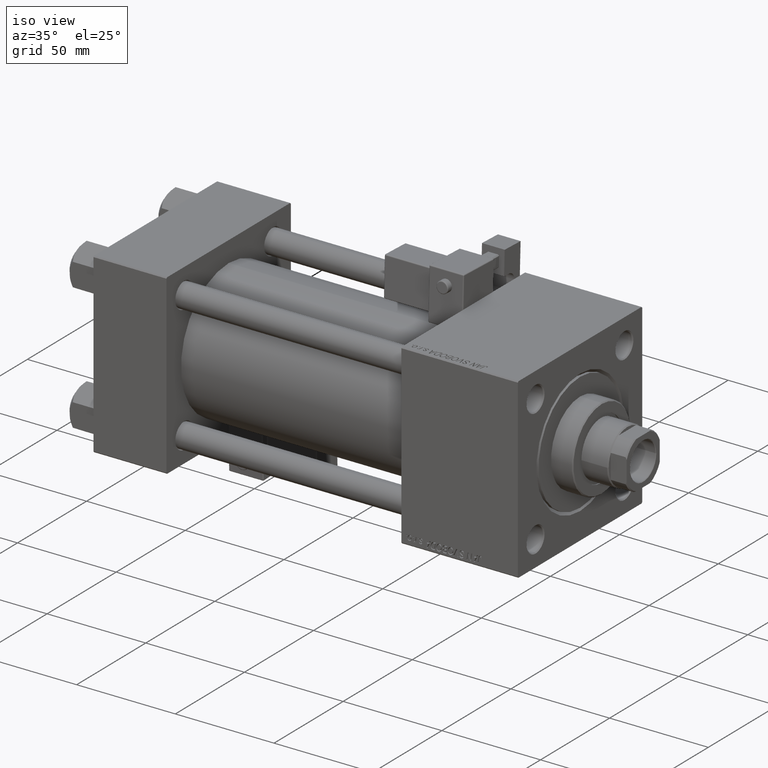
[diagram: clean part render]
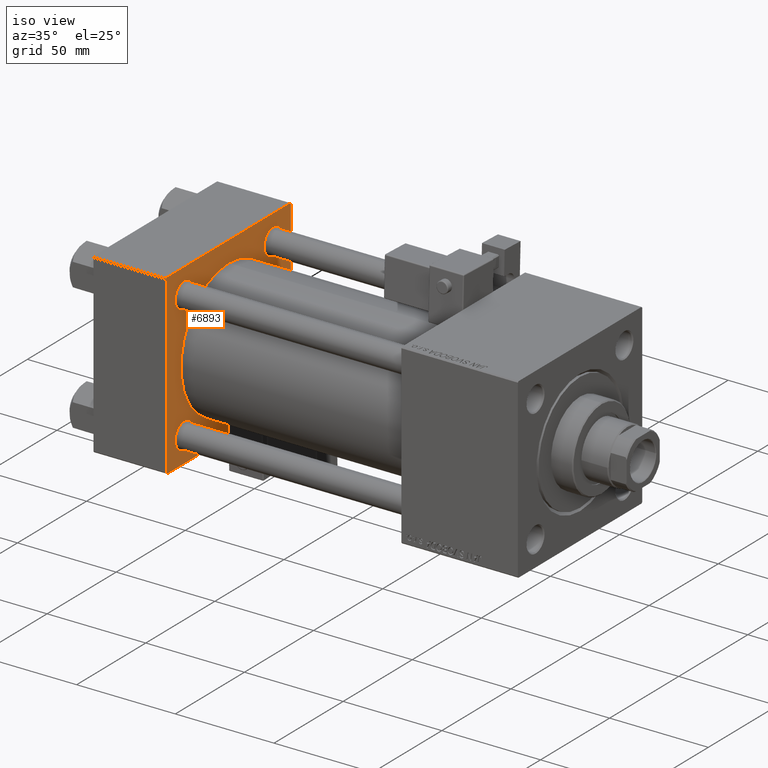
[diagram: same view with one face highlighted and labeled with its STEP entity id]
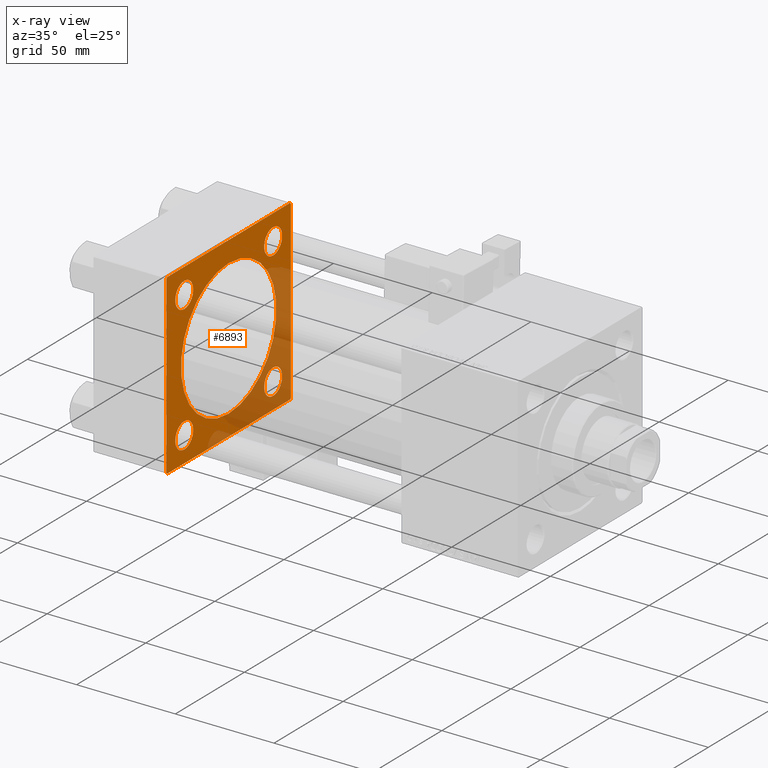
[diagram: x-ray of the same camera — body ghosted, the highlighted face saturated]
A machine part, iso view. The second image highlights one B-rep face of the part: STEP entity #6893.
The next image is the same camera in x-ray: the body ghosted, the highlighted face saturated — about 32% of this face is hidden behind the body in this view.
In plain terms, the highlighted planar face has unit normal (-1, 0, 0).
Its self-contained STEP definition (entity closure, byte-faithful):
#237 = EDGE_CURVE ( 'NONE', #8070, #34668, #23882, .T. ) ;
#497 = FACE_BOUND ( 'NONE', #11381, .T. ) ;
#766 = FACE_OUTER_BOUND ( 'NONE', #14290, .T. ) ;
#981 = DIRECTION ( 'NONE',  ( 0.000000000000000000, -0.7071067811865474617, 0.7071067811865474617 ) ) ;
#1037 = EDGE_CURVE ( 'NONE', #13091, #17216, #9475, .T. ) ;
#1996 = AXIS2_PLACEMENT_3D ( 'NONE', #41012, #9218, #32814 ) ;
#2231 = CARTESIAN_POINT ( 'NONE',  ( 37.00000000000000000, 32.14999999999999147, -32.15000000000000568 ) ) ;
#2335 = CIRCLE ( 'NONE', #31957, 6.500000000000005329 ) ;
#2912 = DIRECTION ( 'NONE',  ( -1.000000000000000000, 0.000000000000000000, -0.000000000000000000 ) ) ;
#4224 = FACE_BOUND ( 'NONE', #48486, .T. ) ;
#4652 = AXIS2_PLACEMENT_3D ( 'NONE', #23295, #39443, #35475 ) ;
#6406 = DIRECTION ( 'NONE',  ( 0.000000000000000000, -1.000000000000000000, -1.541976423090495387E-16 ) ) ;
#6481 = LINE ( 'NONE', #22668, #13468 ) ;
#6758 = CARTESIAN_POINT ( 'NONE',  ( 37.00000000000000000, -45.00000000000000711, 44.49999999999997158 ) ) ;
#6893 = ADVANCED_FACE ( 'NONE', ( #497, #12449, #36553, #44517, #4224, #766 ), #16692, .F. ) ;
#7148 = DIRECTION ( 'NONE',  ( 0.000000000000000000, 0.000000000000000000, 1.000000000000000000 ) ) ;
#7173 = CARTESIAN_POINT ( 'NONE',  ( 37.00000000000000000, -44.49999999999995737, -45.00000000000000000 ) ) ;
#7827 = VECTOR ( 'NONE', #981, 1000.000000000000114 ) ;
#8070 = VERTEX_POINT ( 'NONE', #36235 ) ;
#8630 = CIRCLE ( 'NONE', #17119, 6.499999999999977796 ) ;
#8792 = VERTEX_POINT ( 'NONE', #33065 ) ;
#8805 = ORIENTED_EDGE ( 'NONE', *, *, #18613, .T. ) ;
#9218 = DIRECTION ( 'NONE',  ( 1.000000000000000000, -0.000000000000000000, 0.000000000000000000 ) ) ;
#9396 = LINE ( 'NONE', #30067, #18848 ) ;
#9475 = LINE ( 'NONE', #44275, #7827 ) ;
#9603 = LINE ( 'NONE', #50426, #34759 ) ;
#9667 = DIRECTION ( 'NONE',  ( 0.000000000000000000, 0.000000000000000000, 1.000000000000000000 ) ) ;
#9936 = DIRECTION ( 'NONE',  ( -1.000000000000000000, 0.000000000000000000, -0.000000000000000000 ) ) ;
#10436 = EDGE_LOOP ( 'NONE', ( #8805, #27571 ) ) ;
#11330 = EDGE_CURVE ( 'NONE', #22027, #13874, #11469, .T. ) ;
#11381 = EDGE_LOOP ( 'NONE', ( #17068, #41189 ) ) ;
#11453 = CARTESIAN_POINT ( 'NONE',  ( 37.00000000000000000, 32.14999999999999147, -38.64999999999998437 ) ) ;
#11469 = CIRCLE ( 'NONE', #19117, 6.499999999999977796 ) ;
#11522 = ORIENTED_EDGE ( 'NONE', *, *, #48686, .T. ) ;
#12254 = ORIENTED_EDGE ( 'NONE', *, *, #48915, .F. ) ;
#12449 = FACE_BOUND ( 'NONE', #30781, .T. ) ;
#12464 = CARTESIAN_POINT ( 'NONE',  ( 37.00000000000000000, 44.49999999999998579, 45.00000000000001421 ) ) ;
#12542 = CARTESIAN_POINT ( 'NONE',  ( 37.00000000000000000, -44.49999999999995737, 45.00000000000000000 ) ) ;
#13080 = VERTEX_POINT ( 'NONE', #14651 ) ;
#13091 = VERTEX_POINT ( 'NONE', #14907 ) ;
#13293 = CIRCLE ( 'NONE', #14137, 6.499999999999977796 ) ;
#13468 = VECTOR ( 'NONE', #51279, 1000.000000000000114 ) ;
#13874 = VERTEX_POINT ( 'NONE', #11453 ) ;
#14067 = EDGE_LOOP ( 'NONE', ( #34924, #36922 ) ) ;
#14137 = AXIS2_PLACEMENT_3D ( 'NONE', #18576, #34728, #43199 ) ;
#14240 = EDGE_CURVE ( 'NONE', #40834, #28651, #13293, .T. ) ;
#14290 = EDGE_LOOP ( 'NONE', ( #39456, #16851, #45296, #37069, #11522, #14902, #32671, #32631 ) ) ;
#14651 = CARTESIAN_POINT ( 'NONE',  ( 37.00000000000000000, 44.49999999999998579, -44.99999999999998579 ) ) ;
#14902 = ORIENTED_EDGE ( 'NONE', *, *, #19513, .T. ) ;
#14907 = CARTESIAN_POINT ( 'NONE',  ( 37.00000000000000000, 44.99999999999998579, 44.50000000000001421 ) ) ;
#15032 = DIRECTION ( 'NONE',  ( 0.000000000000000000, 0.000000000000000000, 1.000000000000000000 ) ) ;
#15240 = VERTEX_POINT ( 'NONE', #41183 ) ;
#15589 = CARTESIAN_POINT ( 'NONE',  ( 37.00000000000000000, 44.99999999999998579, -44.99999999999998579 ) ) ;
#16430 = DIRECTION ( 'NONE',  ( -1.000000000000000000, 0.000000000000000000, -0.000000000000000000 ) ) ;
#16692 = PLANE ( 'NONE',  #34177 ) ;
#16822 = AXIS2_PLACEMENT_3D ( 'NONE', #26971, #46837, #15032 ) ;
#16851 = ORIENTED_EDGE ( 'NONE', *, *, #19907, .T. ) ;
#17068 = ORIENTED_EDGE ( 'NONE', *, *, #237, .T. ) ;
#17119 = AXIS2_PLACEMENT_3D ( 'NONE', #2231, #22646, #37753 ) ;
#17216 = VERTEX_POINT ( 'NONE', #12464 ) ;
#18066 = CIRCLE ( 'NONE', #1996, 34.50000000000000000 ) ;
#18101 = CARTESIAN_POINT ( 'NONE',  ( 37.00000000000000000, 44.99999999999998579, 45.00000000000001421 ) ) ;
#18576 = CARTESIAN_POINT ( 'NONE',  ( 37.00000000000000000, 32.14999999999999147, 32.15000000000000568 ) ) ;
#18613 = EDGE_CURVE ( 'NONE', #8792, #15240, #33192, .T. ) ;
#18669 = EDGE_CURVE ( 'NONE', #13874, #22027, #8630, .T. ) ;
#18848 = VECTOR ( 'NONE', #37473, 1000.000000000000114 ) ;
#19117 = AXIS2_PLACEMENT_3D ( 'NONE', #44000, #2912, #7148 ) ;
#19274 = VERTEX_POINT ( 'NONE', #6758 ) ;
#19513 = EDGE_CURVE ( 'NONE', #45047, #19274, #9396, .T. ) ;
#19899 = VERTEX_POINT ( 'NONE', #37159 ) ;
#19907 = EDGE_CURVE ( 'NONE', #13080, #30337, #24975, .T. ) ;
#20056 = VERTEX_POINT ( 'NONE', #35002 ) ;
#20654 = DIRECTION ( 'NONE',  ( -0.000000000000000000, 0.000000000000000000, 1.000000000000000000 ) ) ;
#20739 = CIRCLE ( 'NONE', #4652, 6.499999999999977796 ) ;
#20830 = CARTESIAN_POINT ( 'NONE',  ( 37.00000000000000000, 44.99999999999998579, -44.49999999999995737 ) ) ;
#21967 = EDGE_CURVE ( 'NONE', #20056, #19899, #18066, .T. ) ;
#22027 = VERTEX_POINT ( 'NONE', #40746 ) ;
#22065 = DIRECTION ( 'NONE',  ( 0.000000000000000000, 7.709882115452476934E-17, -1.000000000000000000 ) ) ;
#22646 = DIRECTION ( 'NONE',  ( -1.000000000000000000, 0.000000000000000000, -0.000000000000000000 ) ) ;
#22668 = CARTESIAN_POINT ( 'NONE',  ( 37.00000000000000000, -44.49999999999998579, -45.00000000000000000 ) ) ;
#23295 = CARTESIAN_POINT ( 'NONE',  ( 37.00000000000000000, 32.14999999999999147, 32.15000000000000568 ) ) ;
#23577 = CIRCLE ( 'NONE', #16822, 34.50000000000000000 ) ;
#23882 = CIRCLE ( 'NONE', #47565, 6.500000000000005329 ) ;
#24975 = LINE ( 'NONE', #50413, #38314 ) ;
#25300 = EDGE_CURVE ( 'NONE', #28651, #40834, #20739, .T. ) ;
#25627 = CARTESIAN_POINT ( 'NONE',  ( 37.00000000000000000, -32.14999999999997726, -32.15000000000001279 ) ) ;
#26971 = CARTESIAN_POINT ( 'NONE',  ( 37.00000000000000711, -2.602085213965210642E-15, 0.000000000000000000 ) ) ;
#27571 = ORIENTED_EDGE ( 'NONE', *, *, #34892, .T. ) ;
#28351 = VERTEX_POINT ( 'NONE', #35246 ) ;
#28651 = VERTEX_POINT ( 'NONE', #47843 ) ;
#30067 = CARTESIAN_POINT ( 'NONE',  ( 37.00000000000000000, -45.00000000000000711, 44.49999999999997158 ) ) ;
#30337 = VERTEX_POINT ( 'NONE', #20830 ) ;
#30537 = VECTOR ( 'NONE', #40410, 1000.000000000000000 ) ;
#30781 = EDGE_LOOP ( 'NONE', ( #47549, #37061 ) ) ;
#31957 = AXIS2_PLACEMENT_3D ( 'NONE', #35349, #51530, #52047 ) ;
#32277 = LINE ( 'NONE', #15589, #38118 ) ;
#32631 = ORIENTED_EDGE ( 'NONE', *, *, #38194, .T. ) ;
#32671 = ORIENTED_EDGE ( 'NONE', *, *, #41212, .T. ) ;
#32814 = DIRECTION ( 'NONE',  ( 0.000000000000000000, 0.000000000000000000, 1.000000000000000000 ) ) ;
#33065 = CARTESIAN_POINT ( 'NONE',  ( 37.00000000000000000, -32.14999999999997726, 25.65000000000000568 ) ) ;
#33192 = CIRCLE ( 'NONE', #48443, 6.500000000000005329 ) ;
#33724 = VECTOR ( 'NONE', #6406, 1000.000000000000000 ) ;
#33844 = DIRECTION ( 'NONE',  ( -1.000000000000000000, 0.000000000000000000, -0.000000000000000000 ) ) ;
#33898 = AXIS2_PLACEMENT_3D ( 'NONE', #34307, #9936, #9667 ) ;
#34020 = ORIENTED_EDGE ( 'NONE', *, *, #21967, .F. ) ;
#34052 = DIRECTION ( 'NONE',  ( -1.000000000000000000, 0.000000000000000000, -0.000000000000000000 ) ) ;
#34177 = AXIS2_PLACEMENT_3D ( 'NONE', #49289, #16430, #20654 ) ;
#34307 = CARTESIAN_POINT ( 'NONE',  ( 37.00000000000000000, -32.14999999999997726, -32.15000000000001279 ) ) ;
#34365 = DIRECTION ( 'NONE',  ( 0.000000000000000000, 0.000000000000000000, 1.000000000000000000 ) ) ;
#34570 = CARTESIAN_POINT ( 'NONE',  ( 37.00000000000000000, -32.14999999999997726, 32.15000000000001279 ) ) ;
#34668 = VERTEX_POINT ( 'NONE', #51070 ) ;
#34728 = DIRECTION ( 'NONE',  ( -1.000000000000000000, 0.000000000000000000, -0.000000000000000000 ) ) ;
#34759 = VECTOR ( 'NONE', #22065, 1000.000000000000000 ) ;
#34892 = EDGE_CURVE ( 'NONE', #15240, #8792, #2335, .T. ) ;
#34924 = ORIENTED_EDGE ( 'NONE', *, *, #25300, .T. ) ;
#35002 = CARTESIAN_POINT ( 'NONE',  ( 37.00000000000000711, -2.602085213965210642E-15, 34.50000000000000000 ) ) ;
#35246 = CARTESIAN_POINT ( 'NONE',  ( 37.00000000000000000, -45.00000000000000000, -44.49999999999995737 ) ) ;
#35349 = CARTESIAN_POINT ( 'NONE',  ( 37.00000000000000000, -32.14999999999997726, 32.15000000000001279 ) ) ;
#35475 = DIRECTION ( 'NONE',  ( 0.000000000000000000, 0.000000000000000000, 1.000000000000000000 ) ) ;
#35917 = LINE ( 'NONE', #52086, #30537 ) ;
#36235 = CARTESIAN_POINT ( 'NONE',  ( 37.00000000000000000, -32.14999999999997726, -38.65000000000001990 ) ) ;
#36553 = FACE_BOUND ( 'NONE', #10436, .T. ) ;
#36922 = ORIENTED_EDGE ( 'NONE', *, *, #14240, .T. ) ;
#37061 = ORIENTED_EDGE ( 'NONE', *, *, #11330, .T. ) ;
#37069 = ORIENTED_EDGE ( 'NONE', *, *, #1037, .T. ) ;
#37159 = CARTESIAN_POINT ( 'NONE',  ( 37.00000000000000711, 1.622946243093158675E-15, -34.50000000000000000 ) ) ;
#37473 = DIRECTION ( 'NONE',  ( -0.000000000000000000, -0.7071067811865425767, -0.7071067811865524577 ) ) ;
#37753 = DIRECTION ( 'NONE',  ( 0.000000000000000000, 0.000000000000000000, 1.000000000000000000 ) ) ;
#38118 = VECTOR ( 'NONE', #47928, 1000.000000000000000 ) ;
#38194 = EDGE_CURVE ( 'NONE', #28351, #43019, #6481, .T. ) ;
#38314 = VECTOR ( 'NONE', #41929, 1000.000000000000114 ) ;
#39443 = DIRECTION ( 'NONE',  ( -1.000000000000000000, 0.000000000000000000, -0.000000000000000000 ) ) ;
#39456 = ORIENTED_EDGE ( 'NONE', *, *, #41363, .F. ) ;
#40410 = DIRECTION ( 'NONE',  ( 0.000000000000000000, 0.000000000000000000, -1.000000000000000000 ) ) ;
#40746 = CARTESIAN_POINT ( 'NONE',  ( 37.00000000000000000, 32.14999999999999147, -25.65000000000002700 ) ) ;
#40749 = EDGE_CURVE ( 'NONE', #13091, #30337, #35917, .T. ) ;
#40834 = VERTEX_POINT ( 'NONE', #48130 ) ;
#41012 = CARTESIAN_POINT ( 'NONE',  ( 37.00000000000000711, -2.602085213965210642E-15, 0.000000000000000000 ) ) ;
#41056 = EDGE_CURVE ( 'NONE', #34668, #8070, #49991, .T. ) ;
#41183 = CARTESIAN_POINT ( 'NONE',  ( 37.00000000000000000, -32.14999999999997726, 38.65000000000001990 ) ) ;
#41189 = ORIENTED_EDGE ( 'NONE', *, *, #41056, .T. ) ;
#41212 = EDGE_CURVE ( 'NONE', #19274, #28351, #9603, .T. ) ;
#41363 = EDGE_CURVE ( 'NONE', #13080, #43019, #32277, .T. ) ;
#41929 = DIRECTION ( 'NONE',  ( -0.000000000000000000, 0.7071067811865474617, 0.7071067811865474617 ) ) ;
#42731 = LINE ( 'NONE', #18101, #33724 ) ;
#43019 = VERTEX_POINT ( 'NONE', #7173 ) ;
#43199 = DIRECTION ( 'NONE',  ( 0.000000000000000000, 0.000000000000000000, 1.000000000000000000 ) ) ;
#44000 = CARTESIAN_POINT ( 'NONE',  ( 37.00000000000000000, 32.14999999999999147, -32.15000000000000568 ) ) ;
#44275 = CARTESIAN_POINT ( 'NONE',  ( 37.00000000000000000, 44.49999999999998579, 45.00000000000001421 ) ) ;
#44517 = FACE_BOUND ( 'NONE', #14067, .T. ) ;
#45047 = VERTEX_POINT ( 'NONE', #12542 ) ;
#45296 = ORIENTED_EDGE ( 'NONE', *, *, #40749, .F. ) ;
#46504 = DIRECTION ( 'NONE',  ( 0.000000000000000000, 0.000000000000000000, 1.000000000000000000 ) ) ;
#46837 = DIRECTION ( 'NONE',  ( 1.000000000000000000, -0.000000000000000000, 0.000000000000000000 ) ) ;
#47549 = ORIENTED_EDGE ( 'NONE', *, *, #18669, .T. ) ;
#47565 = AXIS2_PLACEMENT_3D ( 'NONE', #25627, #33844, #34365 ) ;
#47843 = CARTESIAN_POINT ( 'NONE',  ( 37.00000000000000000, 32.14999999999999147, 25.65000000000002700 ) ) ;
#47928 = DIRECTION ( 'NONE',  ( 0.000000000000000000, -1.000000000000000000, -1.541976423090495633E-16 ) ) ;
#48130 = CARTESIAN_POINT ( 'NONE',  ( 37.00000000000000000, 32.14999999999999147, 38.64999999999998437 ) ) ;
#48443 = AXIS2_PLACEMENT_3D ( 'NONE', #34570, #34052, #46504 ) ;
#48486 = EDGE_LOOP ( 'NONE', ( #34020, #12254 ) ) ;
#48686 = EDGE_CURVE ( 'NONE', #17216, #45047, #42731, .T. ) ;
#48915 = EDGE_CURVE ( 'NONE', #19899, #20056, #23577, .T. ) ;
#49289 = CARTESIAN_POINT ( 'NONE',  ( 37.00000000000000000, 0.000000000000000000, 0.000000000000000000 ) ) ;
#49991 = CIRCLE ( 'NONE', #33898, 6.500000000000005329 ) ;
#50413 = CARTESIAN_POINT ( 'NONE',  ( 37.00000000000000000, 44.99999999999998579, -44.49999999999998579 ) ) ;
#50426 = CARTESIAN_POINT ( 'NONE',  ( 37.00000000000000000, -45.00000000000000711, 45.00000000000000000 ) ) ;
#51070 = CARTESIAN_POINT ( 'NONE',  ( 37.00000000000000000, -32.14999999999997726, -25.65000000000000568 ) ) ;
#51279 = DIRECTION ( 'NONE',  ( 0.000000000000000000, 0.7071067811865474617, -0.7071067811865474617 ) ) ;
#51530 = DIRECTION ( 'NONE',  ( -1.000000000000000000, 0.000000000000000000, -0.000000000000000000 ) ) ;
#52047 = DIRECTION ( 'NONE',  ( 0.000000000000000000, 0.000000000000000000, 1.000000000000000000 ) ) ;
#52086 = CARTESIAN_POINT ( 'NONE',  ( 37.00000000000000000, 44.99999999999998579, 45.00000000000001421 ) ) ;